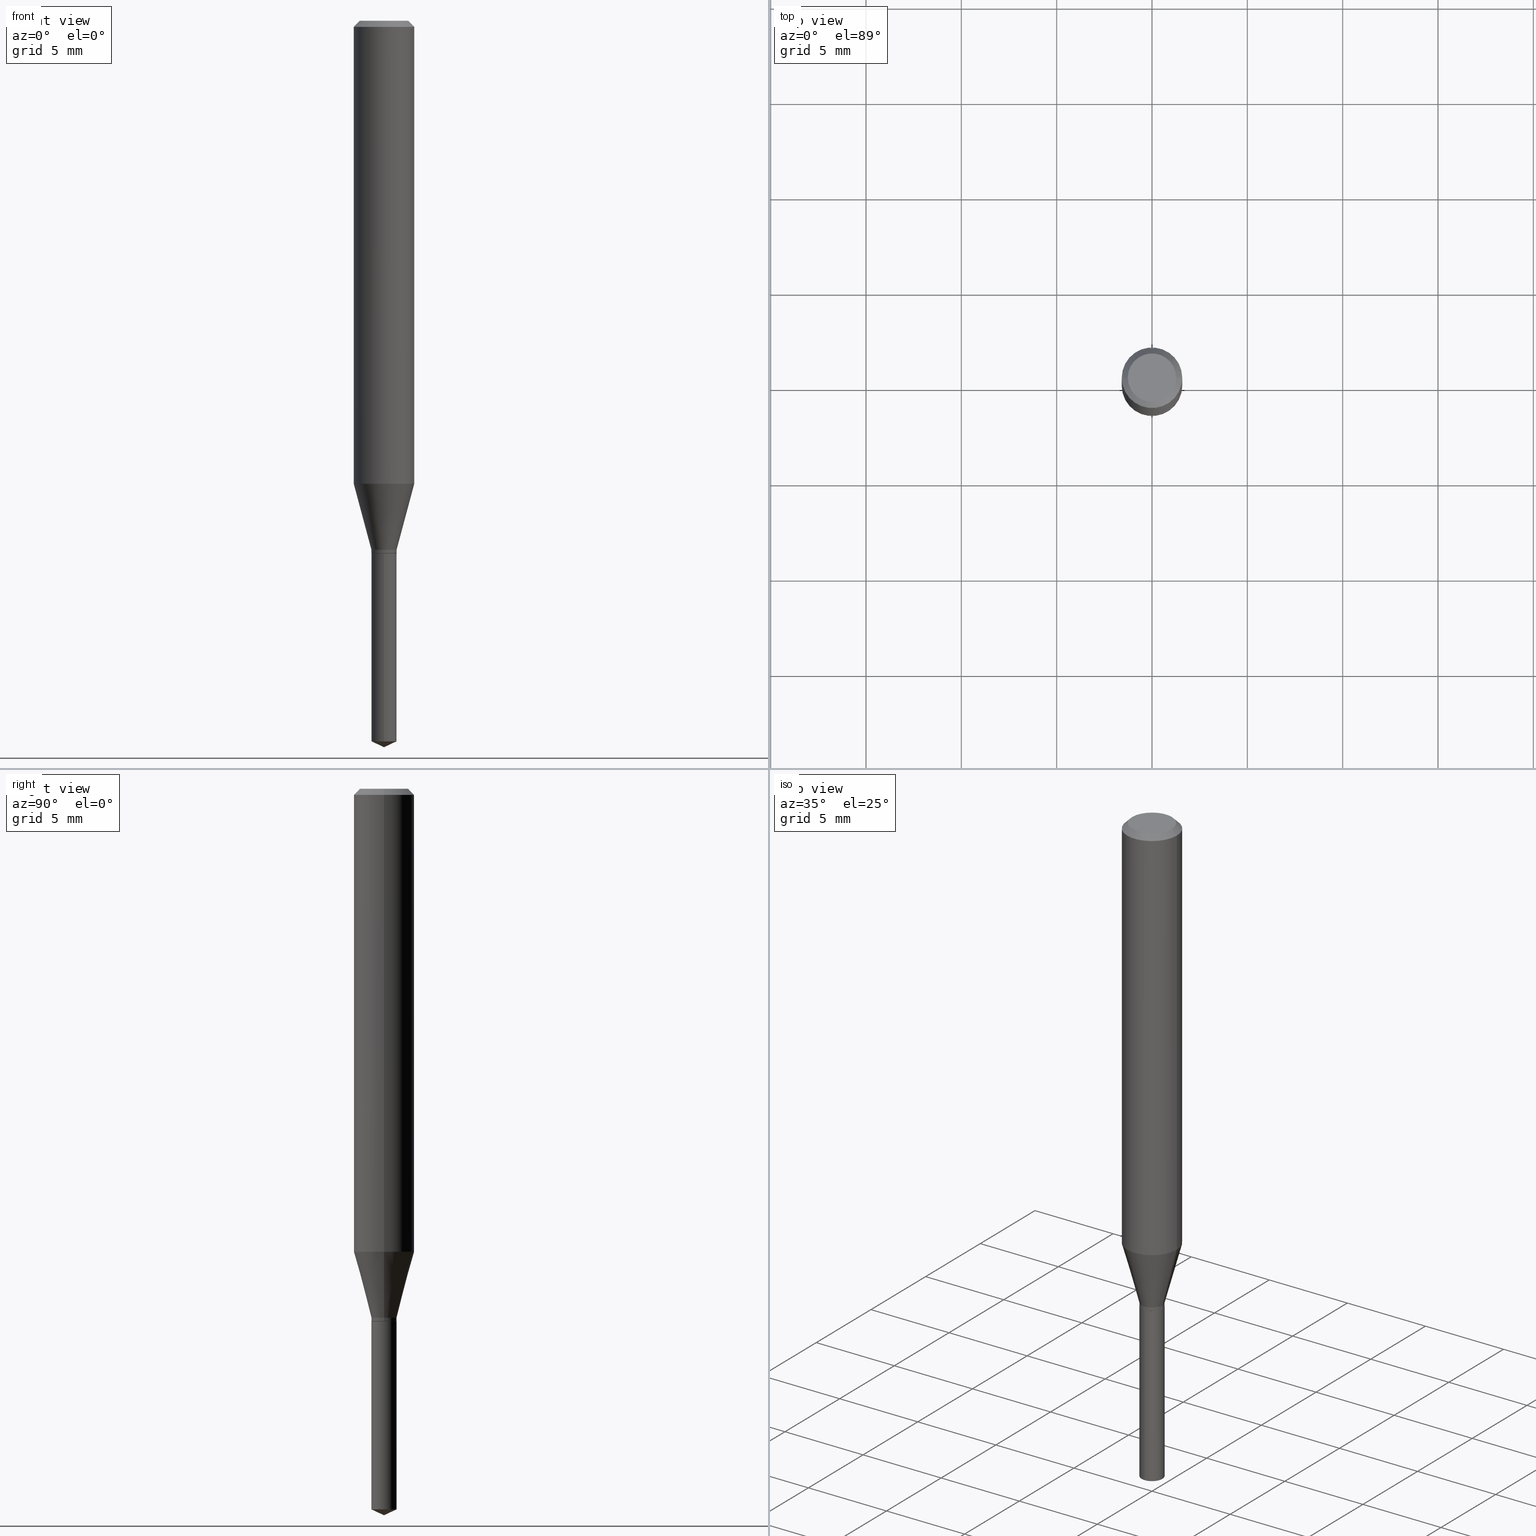
[diagram: canonical four-view strip — front | top / right | iso, engineering-drawing reading convention]
A machine part, canonical four-view strip (front | top / right | iso — engineering-drawing reading convention). The complete STEP part file that produces these views, byte-faithful:
ISO-10303-21;
HEADER;
FILE_DESCRIPTION (( 'STEP AP203' ),
    '1' );
FILE_NAME ('07333.STEP',
    '2024-04-23T20:31:27',
    ( '' ),
    ( '' ),
    'SwSTEP 2.0',
    'SolidWorks 2023',
    '' );
FILE_SCHEMA (( 'CONFIG_CONTROL_DESIGN' ));
ENDSEC;

DATA;
#1 = MANIFOLD_SOLID_BREP ( 'Body-Move/Copy2[2]', #91 ) ;
#2 = MECHANICAL_CONTEXT ( 'NONE', #404, 'mechanical' ) ;
#3 = MANIFOLD_SOLID_BREP ( 'Body-Move/Copy2[1]', #80 ) ;
#4 = AXIS2_PLACEMENT_3D ( 'NONE', #116, #315, #349 ) ;
#5 = CIRCLE ( 'NONE', #464, 0.06250000000000012490 ) ;
#6 = ORIENTED_EDGE ( 'NONE', *, *, #234, .F. ) ;
#7 = LINE ( 'NONE', #319, #204 ) ;
#8 = CONICAL_SURFACE ( 'NONE', #121, 0.06250000000000000000, 0.7853981633974449483 ) ;
#9 = AXIS2_PLACEMENT_3D ( 'NONE', #147, #304, #332 ) ;
#10 = DIRECTION ( 'NONE',  ( 2.445468806185136597E-29, -3.491481338843145583E-15, -1.000000000000000000 ) ) ;
#11 =( LENGTH_UNIT ( ) NAMED_UNIT ( * ) SI_UNIT ( $, .METRE. ) );
#12 = CARTESIAN_POINT ( 'NONE',  ( 1.847411112976625000E-16, 0.02599999999999615813, -1.100000000000000089 ) ) ;
#13 = FACE_OUTER_BOUND ( 'NONE', #293, .T. ) ;
#14 = FACE_OUTER_BOUND ( 'NONE', #59, .T. ) ;
#15 = EDGE_CURVE ( 'NONE', #222, #401, #244, .T. ) ;
#16 = VECTOR ( 'NONE', #37, 39.37007874015747433 ) ;
#17 = DIRECTION ( 'NONE',  ( -1.000000000000000000, 6.982962677686265922E-15, -4.876176775795935793E-29 ) ) ;
#18 = DIRECTION ( 'NONE',  ( 1.000000000000000000, -6.982962677686266711E-15, 0.000000000000000000 ) ) ;
#19 = ORIENTED_EDGE ( 'NONE', *, *, #307, .T. ) ;
#20 = LINE ( 'NONE', #199, #190 ) ;
#21 = VERTEX_POINT ( 'NONE', #466 ) ;
#22 = EDGE_LOOP ( 'NONE', ( #179, #247, #357, #406 ) ) ;
#23 = EDGE_CURVE ( 'NONE', #92, #89, #182, .T. ) ;
#24 = CARTESIAN_POINT ( 'NONE',  ( 2.690015686803650369E-29, -3.840629472727460101E-15, -1.100000000000000089 ) ) ;
#25 = CIRCLE ( 'NONE', #424, 0.02599999999999999534 ) ;
#26 = ORIENTED_EDGE ( 'NONE', *, *, #15, .T. ) ;
#27 = DIRECTION ( 'NONE',  ( 1.000000000000000000, -6.982962677686258822E-15, 0.000000000000000000 ) ) ;
#28 = ORIENTED_EDGE ( 'NONE', *, *, #165, .F. ) ;
#29 = COORDINATED_UNIVERSAL_TIME_OFFSET ( 5, 0, .BEHIND. ) ;
#30 = EDGE_LOOP ( 'NONE', ( #130, #370, #260, #66 ) ) ;
#31 = CARTESIAN_POINT ( 'NONE',  ( 2.670941030115406477E-29, -3.813395918284483857E-15, -1.092200000000000060 ) ) ;
#32 = EDGE_CURVE ( 'NONE', #368, #105, #78, .T. ) ;
#33 = DATE_AND_TIME ( #372, #246 ) ;
#34 = CARTESIAN_POINT ( 'NONE',  ( 0.000000000000000000, 0.000000000000000000, 0.000000000000000000 ) ) ;
#35 = CC_DESIGN_DATE_AND_TIME_ASSIGNMENT ( #136, #225, ( #353 ) ) ;
#36 = CALENDAR_DATE ( 2024, 23, 4 ) ;
#37 = DIRECTION ( 'NONE',  ( 0.2588190451025213501, 1.565188264969621968E-15, 0.9659258262890682012 ) ) ;
#38 = EDGE_CURVE ( 'NONE', #166, #331, #316, .T. ) ;
#39 = LOCAL_TIME ( 16, 31, 27.00000000000000000, #303 ) ;
#40 = ORIENTED_EDGE ( 'NONE', *, *, #238, .F. ) ;
#41 = ADVANCED_FACE ( 'NONE', ( #161 ), #8, .T. ) ;
#42 = DIRECTION ( 'NONE',  ( -6.982962677686266711E-15, -1.000000000000000000, 0.000000000000000000 ) ) ;
#43 = AXIS2_PLACEMENT_3D ( 'NONE', #360, #169, #324 ) ;
#44 = CARTESIAN_POINT ( 'NONE',  ( 3.056836007731443167E-31, -4.364351673553963533E-17, -0.01250000000000009090 ) ) ;
#45 = FACE_OUTER_BOUND ( 'NONE', #220, .T. ) ;
#46 = CARTESIAN_POINT ( 'NONE',  ( -0.06250000000000005551, 4.440892098500630106E-16, -3.074334431409318916E-30 ) ) ;
#47 = CARTESIAN_POINT ( 'NONE',  ( 3.056836007731443167E-31, -4.364351673553963533E-17, -0.01250000000000009090 ) ) ;
#48 = DIRECTION ( 'NONE',  ( -2.445468806185136597E-29, 3.491481338843145583E-15, 1.000000000000000000 ) ) ;
#49 = DIRECTION ( 'NONE',  ( -2.445468806185136877E-29, 3.491481338843145188E-15, 1.000000000000000000 ) ) ;
#50 = CIRCLE ( 'NONE', #305, 0.02549999999999999489 ) ;
#51 = FACE_OUTER_BOUND ( 'NONE', #251, .T. ) ;
#52 = ORIENTED_EDGE ( 'NONE', *, *, #23, .F. ) ;
#53 = CARTESIAN_POINT ( 'NONE',  ( 2.690015686803650369E-29, -3.840629472727460101E-15, -1.100000000000000089 ) ) ;
#54 = ORIENTED_EDGE ( 'NONE', *, *, #57, .F. ) ;
#55 = CARTESIAN_POINT ( 'NONE',  ( 2.690015686803650369E-29, -3.840629472727460101E-15, -1.100000000000000089 ) ) ;
#56 = ORIENTED_EDGE ( 'NONE', *, *, #38, .T. ) ;
#57 = EDGE_CURVE ( 'NONE', #191, #401, #83, .T. ) ;
#58 = APPROVAL_STATUS ( 'not_yet_approved' ) ;
#59 = EDGE_LOOP ( 'NONE', ( #201, #362, #170, #209 ) ) ;
#60 = DIRECTION ( 'NONE',  ( -6.982962677686266711E-15, -1.000000000000000000, 0.000000000000000000 ) ) ;
#61 = PERSON_AND_ORGANIZATION ( #361, #289 ) ;
#62 = ORIENTED_EDGE ( 'NONE', *, *, #127, .F. ) ;
#63 = DIRECTION ( 'NONE',  ( -2.445468806185136597E-29, 3.491481338843145583E-15, 1.000000000000000000 ) ) ;
#64 = EDGE_LOOP ( 'NONE', ( #483, #137, #390, #28 ) ) ;
#65 = COORDINATED_UNIVERSAL_TIME_OFFSET ( 5, 0, .BEHIND. ) ;
#66 = ORIENTED_EDGE ( 'NONE', *, *, #184, .F. ) ;
#67 = DIRECTION ( 'NONE',  ( -2.445468806185136597E-29, 3.491481338843145583E-15, 1.000000000000000000 ) ) ;
#68 = EDGE_CURVE ( 'NONE', #322, #105, #142, .T. ) ;
#69 = EDGE_LOOP ( 'NONE', ( #177, #337, #294, #140 ) ) ;
#70 = PERSON_AND_ORGANIZATION_ROLE ( 'design_owner' ) ;
#71 = DIRECTION ( 'NONE',  ( -0.7071067811865232589, 7.493145998870265808E-15, 0.7071067811865715536 ) ) ;
#72 = VECTOR ( 'NONE', #298, 39.37007874015748143 ) ;
#73 = CARTESIAN_POINT ( 'NONE',  ( -0.02549999999999999489, -3.659441075108634788E-15, -1.100000000000000089 ) ) ;
#74 = CARTESIAN_POINT ( 'NONE',  ( 0.06250000000000000000, -4.800786840909313294E-16, -0.01250000000000009090 ) ) ;
#75 = ADVANCED_FACE ( 'NONE', ( #313 ), #355, .T. ) ;
#76 = EDGE_CURVE ( 'NONE', #368, #21, #287, .T. ) ;
#77 = DIRECTION ( 'NONE',  ( -0.2588190451025213501, 5.211531920934551042E-15, 0.9659258262890682012 ) ) ;
#78 = LINE ( 'NONE', #232, #276 ) ;
#79 = DIRECTION ( 'NONE',  ( 1.000000000000000000, -6.982962677686267499E-15, 4.876176775795936353E-29 ) ) ;
#80 = CLOSED_SHELL ( 'NONE', ( #393, #94, #359, #334, #278 ) ) ;
#81 = CIRCLE ( 'NONE', #189, 0.04999999999999999584 ) ;
#82 = CC_DESIGN_APPROVAL ( #338, ( #145 ) ) ;
#83 = LINE ( 'NONE', #389, #194 ) ;
#84 = EDGE_CURVE ( 'NONE', #331, #439, #7, .T. ) ;
#85 = CARTESIAN_POINT ( 'NONE',  ( -0.02549999999999999489, -3.656791847934523587E-15, -1.100000000000000089 ) ) ;
#86 = DIRECTION ( 'NONE',  ( 1.000000000000000000, -6.982962677686258822E-15, 0.000000000000000000 ) ) ;
#87 = CARTESIAN_POINT ( 'NONE',  ( 3.056836007731443167E-31, -4.364351673553963533E-17, -0.01250000000000009090 ) ) ;
#88 = LINE ( 'NONE', #396, #195 ) ;
#89 = VERTEX_POINT ( 'NONE', #117 ) ;
#90 = CARTESIAN_POINT ( 'NONE',  ( 0.02599999999999999534, -3.994952947904326539E-15, -1.092200000000000060 ) ) ;
#91 = CLOSED_SHELL ( 'NONE', ( #158, #41, #120, #386, #421, #75, #377, #427, #342, #271, #489, #149 ) ) ;
#92 = VERTEX_POINT ( 'NONE', #469 ) ;
#93 = CC_DESIGN_APPROVAL ( #268, ( #353 ) ) ;
#94 = ADVANCED_FACE ( 'NONE', ( #418 ), #456, .T. ) ;
#95 = DIRECTION ( 'NONE',  ( 1.000000000000000000, 0.000000000000000000, 0.000000000000000000 ) ) ;
#96 = ORIENTED_EDGE ( 'NONE', *, *, #57, .T. ) ;
#97 = CARTESIAN_POINT ( 'NONE',  ( 0.06250000000000011102, -3.774222005756071563E-15, -0.9559801455237360024 ) ) ;
#98 = CARTESIAN_POINT ( 'NONE',  ( 2.690015686803650369E-29, -3.840629472727460101E-15, -1.100000000000000089 ) ) ;
#99 = ORIENTED_EDGE ( 'NONE', *, *, #214, .T. ) ;
#100 = PERSON_AND_ORGANIZATION ( #361, #289 ) ;
#101 = ORIENTED_EDGE ( 'NONE', *, *, #307, .F. ) ;
#102 = UNCERTAINTY_MEASURE_WITH_UNIT (LENGTH_MEASURE( 1.000000000000000082E-05 ), #425, 'distance_accuracy_value', 'NONE');
#103 = CARTESIAN_POINT ( 'NONE',  ( 0.02549999999999999489, -4.018695021008459776E-15, -1.100000000000000089 ) ) ;
#104 = DIRECTION ( 'NONE',  ( -2.445399690415121530E-29, 3.491580316559632610E-15, 1.000000000000000000 ) ) ;
#105 = VERTEX_POINT ( 'NONE', #12 ) ;
#106 = EDGE_CURVE ( 'NONE', #399, #89, #153, .T. ) ;
#107 = PERSON_AND_ORGANIZATION ( #361, #289 ) ;
#108 = AXIS2_PLACEMENT_3D ( 'NONE', #387, #351, #159 ) ;
#109 = ORIENTED_EDGE ( 'NONE', *, *, #299, .F. ) ;
#110 = ORIENTED_EDGE ( 'NONE', *, *, #23, .T. ) ;
#111 = PRODUCT_DEFINITION_SHAPE ( 'NONE', 'NONE',  #353 ) ;
#112 = DIRECTION ( 'NONE',  ( -2.445468806185136597E-29, 3.491481338843145583E-15, 1.000000000000000000 ) ) ;
#113 = AXIS2_PLACEMENT_3D ( 'NONE', #461, #286, #118 ) ;
#114 = CIRCLE ( 'NONE', #457, 0.02599999999999999534 ) ;
#115 = AXIS2_PLACEMENT_3D ( 'NONE', #171, #325, #95 ) ;
#116 = CARTESIAN_POINT ( 'NONE',  ( 2.688792952400557567E-29, -3.838883732058038598E-15, -1.099499999999999922 ) ) ;
#117 = CARTESIAN_POINT ( 'NONE',  ( 0.02599999999999999534, -4.020440761677881280E-15, -1.099499999999999922 ) ) ;
#118 = DIRECTION ( 'NONE',  ( -6.982962677686266711E-15, -1.000000000000000000, 5.253553833969737838E-15 ) ) ;
#119 = CARTESIAN_POINT ( 'NONE',  ( 3.638527539294547012E-29, -5.194929682693762230E-15, -1.487876000887969896 ) ) ;
#120 = ADVANCED_FACE ( 'NONE', ( #309 ), #458, .T. ) ;
#121 = AXIS2_PLACEMENT_3D ( 'NONE', #87, #10, #233 ) ;
#122 = VECTOR ( 'NONE', #131, 39.37007874015748143 ) ;
#123 = PLANE ( 'NONE',  #277 ) ;
#124 = DIRECTION ( 'NONE',  ( 1.000000000000000000, -6.982962677686258822E-15, 0.000000000000000000 ) ) ;
#125 = ORIENTED_EDGE ( 'NONE', *, *, #127, .T. ) ;
#126 = ORIENTED_EDGE ( 'NONE', *, *, #196, .F. ) ;
#127 = EDGE_CURVE ( 'NONE', #296, #439, #348, .T. ) ;
#128 = DIRECTION ( 'NONE',  ( -2.445468806185136597E-29, 3.491481338843145583E-15, 1.000000000000000000 ) ) ;
#129 = AXIS2_PLACEMENT_3D ( 'NONE', #311, #420, #79 ) ;
#130 = ORIENTED_EDGE ( 'NONE', *, *, #152, .F. ) ;
#131 = DIRECTION ( 'NONE',  ( -2.445468806185136877E-29, 3.491481338843145188E-15, 1.000000000000000000 ) ) ;
#132 = ADVANCED_BREP_SHAPE_REPRESENTATION ( '07333', ( #3, #1, #115 ), #257 ) ;
#133 = APPROVAL_STATUS ( 'not_yet_approved' ) ;
#134 = CARTESIAN_POINT ( 'NONE',  ( 0.000000000000000000, 0.000000000000000000, 0.000000000000000000 ) ) ;
#135 = ORIENTED_EDGE ( 'NONE', *, *, #234, .T. ) ;
#136 = DATE_AND_TIME ( #410, #228 ) ;
#137 = ORIENTED_EDGE ( 'NONE', *, *, #76, .T. ) ;
#138 = DESIGN_CONTEXT ( 'detailed design', #155, 'design' ) ;
#139 = CARTESIAN_POINT ( 'NONE',  ( 0.06250000000000005551, -4.364351673553921131E-16, 3.047610484872463023E-30 ) ) ;
#140 = ORIENTED_EDGE ( 'NONE', *, *, #188, .F. ) ;
#141 = PERSON_AND_ORGANIZATION ( #361, #289 ) ;
#142 = CIRCLE ( 'NONE', #431, 0.02599999999999999534 ) ;
#143 = CARTESIAN_POINT ( 'NONE',  ( 2.670941030115406477E-29, -3.813395918284483857E-15, -1.092200000000000060 ) ) ;
#144 = CARTESIAN_POINT ( 'NONE',  ( 2.690015686803650369E-29, -3.840629472727460101E-15, -1.100000000000000089 ) ) ;
#145 = PRODUCT_DEFINITION_FORMATION_WITH_SPECIFIED_SOURCE ( 'ANY', '', #343, .NOT_KNOWN. ) ;
#146 = SHAPE_DEFINITION_REPRESENTATION ( #111, #132 ) ;
#147 = CARTESIAN_POINT ( 'NONE',  ( 2.690015686803650369E-29, -3.840629472727460101E-15, -1.100000000000000089 ) ) ;
#148 = PERSON_AND_ORGANIZATION_ROLE ( 'creator' ) ;
#149 = ADVANCED_FACE ( 'NONE', ( #198 ), #350, .T. ) ;
#150 = CIRCLE ( 'NONE', #310, 0.04999999999999999584 ) ;
#151 = APPROVAL_PERSON_ORGANIZATION ( #448, #338, #438 ) ;
#152 = EDGE_CURVE ( 'NONE', #439, #401, #462, .T. ) ;
#153 = LINE ( 'NONE', #347, #154 ) ;
#154 = VECTOR ( 'NONE', #193, 39.37007874015748854 ) ;
#155 = APPLICATION_CONTEXT ( 'configuration controlled 3d designs of mechanical parts and assemblies' ) ;
#156 = DIRECTION ( 'NONE',  ( -2.445399690415121530E-29, 3.491580316559632610E-15, 1.000000000000000000 ) ) ;
#157 = CARTESIAN_POINT ( 'NONE',  ( 3.638527539294547012E-29, -5.194929682693762230E-15, -1.487876000887969896 ) ) ;
#158 = ADVANCED_FACE ( 'NONE', ( #14 ), #394, .T. ) ;
#159 = DIRECTION ( 'NONE',  ( 1.000000000000000000, -6.982962677686258033E-15, 0.000000000000000000 ) ) ;
#160 = CARTESIAN_POINT ( 'NONE',  ( -0.02599999999999999534, 1.847411112976260152E-16, -1.278923123466275386E-30 ) ) ;
#161 = FACE_OUTER_BOUND ( 'NONE', #435, .T. ) ;
#162 = AXIS2_PLACEMENT_3D ( 'NONE', #55, #104, #429 ) ;
#163 = DIRECTION ( 'NONE',  ( -6.328713451373352024E-15, -0.9063077870366461619, 0.4226182617407073239 ) ) ;
#164 = CARTESIAN_POINT ( 'NONE',  ( 2.670941030115406477E-29, -3.813395918284483857E-15, -1.092200000000000060 ) ) ;
#165 = EDGE_CURVE ( 'NONE', #105, #322, #488, .T. ) ;
#166 = VERTEX_POINT ( 'NONE', #90 ) ;
#167 = CARTESIAN_POINT ( 'NONE',  ( 0.04999999999999999584, -4.077247707424184705E-16, -1.592040838888913461E-18 ) ) ;
#168 = ORIENTED_EDGE ( 'NONE', *, *, #184, .T. ) ;
#169 = DIRECTION ( 'NONE',  ( 2.445399690415121250E-29, -3.491580316559632610E-15, -1.000000000000000000 ) ) ;
#170 = ORIENTED_EDGE ( 'NONE', *, *, #415, .F. ) ;
#171 = CARTESIAN_POINT ( 'NONE',  ( 0.000000000000000000, 0.000000000000000000, 0.000000000000000000 ) ) ;
#172 = ORIENTED_EDGE ( 'NONE', *, *, #299, .T. ) ;
#173 = VECTOR ( 'NONE', #71, 39.37007874015748854 ) ;
#174 = VERTEX_POINT ( 'NONE', #480 ) ;
#175 = FACE_OUTER_BOUND ( 'NONE', #22, .T. ) ;
#176 = CC_DESIGN_PERSON_AND_ORGANIZATION_ASSIGNMENT ( #477, #148, ( #353 ) ) ;
#177 = ORIENTED_EDGE ( 'NONE', *, *, #292, .T. ) ;
#178 =( NAMED_UNIT ( * ) SI_UNIT ( $, .STERADIAN. ) SOLID_ANGLE_UNIT ( ) );
#179 = ORIENTED_EDGE ( 'NONE', *, *, #415, .T. ) ;
#180 = CARTESIAN_POINT ( 'NONE',  ( 2.688792952400557567E-29, -3.838883732058038598E-15, -1.099499999999999922 ) ) ;
#181 = APPROVAL_DATE_TIME ( #33, #455 ) ;
#182 = CIRCLE ( 'NONE', #4, 0.02599999999999999534 ) ;
#183 = LOCAL_TIME ( 16, 31, 27.00000000000000000, #364 ) ;
#184 = EDGE_CURVE ( 'NONE', #401, #222, #447, .T. ) ;
#185 = SECURITY_CLASSIFICATION_LEVEL ( 'unclassified' ) ;
#186 = DIRECTION ( 'NONE',  ( 1.000000000000000000, -6.982962677686265922E-15, 4.875957971899673662E-29 ) ) ;
#187 = CARTESIAN_POINT ( 'NONE',  ( 2.337819625210623872E-29, -3.337786838400679105E-15, -0.9559801455237360024 ) ) ;
#188 = EDGE_CURVE ( 'NONE', #21, #322, #217, .T. ) ;
#189 = AXIS2_PLACEMENT_3D ( 'NONE', #314, #465, #422 ) ;
#190 = VECTOR ( 'NONE', #473, 39.37007874015748143 ) ;
#191 = VERTEX_POINT ( 'NONE', #207 ) ;
#192 = CARTESIAN_POINT ( 'NONE',  ( 2.690015686803650369E-29, -3.840629472727460101E-15, -1.100000000000000089 ) ) ;
#193 = DIRECTION ( 'NONE',  ( 0.7071067811865232589, -2.468850131082003836E-15, 0.7071067811865715536 ) ) ;
#194 = VECTOR ( 'NONE', #354, 39.37007874015748143 ) ;
#195 = VECTOR ( 'NONE', #49, 39.37007874015748143 ) ;
#196 = EDGE_CURVE ( 'NONE', #264, #191, #150, .T. ) ;
#197 = DIRECTION ( 'NONE',  ( 1.000000000000000000, -6.982962677686265922E-15, 4.876176775795935793E-29 ) ) ;
#198 = FACE_OUTER_BOUND ( 'NONE', #212, .T. ) ;
#199 = CARTESIAN_POINT ( 'NONE',  ( 0.06250000000000000000, -4.724246415962603826E-16, -0.01250000000000009090 ) ) ;
#200 = DIRECTION ( 'NONE',  ( -2.445468806185136877E-29, 3.491481338843145188E-15, 1.000000000000000000 ) ) ;
#201 = ORIENTED_EDGE ( 'NONE', *, *, #452, .T. ) ;
#202 = DIRECTION ( 'NONE',  ( 2.438088387897960049E-29, -3.491481338843145188E-15, -1.000000000000000000 ) ) ;
#203 = DIRECTION ( 'NONE',  ( -6.982962677686266711E-15, -1.000000000000000000, 5.253553833969737838E-15 ) ) ;
#204 = VECTOR ( 'NONE', #77, 39.37007874015747433 ) ;
#205 = EDGE_LOOP ( 'NONE', ( #433, #485, #408 ) ) ;
#206 = LINE ( 'NONE', #274, #301 ) ;
#207 = CARTESIAN_POINT ( 'NONE',  ( -0.04999999999999999584, 3.709698922520826725E-16, -1.592040838894077649E-18 ) ) ;
#208 = CC_DESIGN_PERSON_AND_ORGANIZATION_ASSIGNMENT ( #61, #443, ( #145 ) ) ;
#209 = ORIENTED_EDGE ( 'NONE', *, *, #106, .F. ) ;
#210 = ORIENTED_EDGE ( 'NONE', *, *, #214, .F. ) ;
#211 = APPROVAL_DATE_TIME ( #482, #268 ) ;
#212 = EDGE_LOOP ( 'NONE', ( #285, #99, #281, #52 ) ) ;
#213 = EDGE_LOOP ( 'NONE', ( #56, #419, #62, #6 ) ) ;
#214 = EDGE_CURVE ( 'NONE', #472, #399, #50, .T. ) ;
#215 = CONICAL_SURFACE ( 'NONE', #375, 0.06250000000000000000, 0.7853981633974449483 ) ;
#216 = CARTESIAN_POINT ( 'NONE',  ( -0.06250000000000011102, -2.893697628550616094E-15, -0.9559801455237360024 ) ) ;
#217 = LINE ( 'NONE', #367, #270 ) ;
#218 = SECURITY_CLASSIFICATION ( '', '', #185 ) ;
#219 = APPROVAL_ROLE ( '' ) ;
#220 = EDGE_LOOP ( 'NONE', ( #444, #476 ) ) ;
#221 = DIRECTION ( 'NONE',  ( 1.000000000000000000, -6.982962677686267499E-15, 4.876176775795936353E-29 ) ) ;
#222 = VERTEX_POINT ( 'NONE', #74 ) ;
#223 = APPROVAL_ROLE ( '' ) ;
#224 = DIRECTION ( 'NONE',  ( 1.000000000000000000, -6.982962677686258822E-15, 0.000000000000000000 ) ) ;
#225 = DATE_TIME_ROLE ( 'creation_date' ) ;
#226 = AXIS2_PLACEMENT_3D ( 'NONE', #164, #235, #124 ) ;
#227 = CIRCLE ( 'NONE', #9, 0.02549999999999999489 ) ;
#228 = LOCAL_TIME ( 16, 31, 27.00000000000000000, #29 ) ;
#229 = FACE_OUTER_BOUND ( 'NONE', #69, .T. ) ;
#230 = LINE ( 'NONE', #378, #16 ) ;
#231 = CC_DESIGN_DATE_AND_TIME_ASSIGNMENT ( #261, #486, ( #218 ) ) ;
#232 = CARTESIAN_POINT ( 'NONE',  ( 1.847411112976528858E-16, 0.02599999999999615466, -1.100000000000000089 ) ) ;
#233 = DIRECTION ( 'NONE',  ( -1.000000000000000000, 6.982962677686266711E-15, 0.000000000000000000 ) ) ;
#234 = EDGE_CURVE ( 'NONE', #166, #296, #230, .T. ) ;
#235 = DIRECTION ( 'NONE',  ( -2.445468806185136597E-29, 3.491481338843145583E-15, 1.000000000000000000 ) ) ;
#236 = AXIS2_PLACEMENT_3D ( 'NONE', #34, #112, #221 ) ;
#237 = DIRECTION ( 'NONE',  ( 1.000000000000000000, -6.982962677686264344E-15, 0.000000000000000000 ) ) ;
#238 = EDGE_CURVE ( 'NONE', #439, #296, #5, .T. ) ;
#239 = CARTESIAN_POINT ( 'NONE',  ( 3.668099535622682155E-29, -5.237370474839448718E-15, -1.500000000000000222 ) ) ;
#240 = DIRECTION ( 'NONE',  ( 1.000000000000000000, -6.982962677686267499E-15, 4.876176775795935793E-29 ) ) ;
#241 = ORIENTED_EDGE ( 'NONE', *, *, #152, .T. ) ;
#242 = CARTESIAN_POINT ( 'NONE',  ( -0.02599999999999999534, -3.641398713873635015E-15, -1.092200000000000060 ) ) ;
#243 = CC_DESIGN_PERSON_AND_ORGANIZATION_ASSIGNMENT ( #297, #402, ( #145 ) ) ;
#244 = CIRCLE ( 'NONE', #344, 0.06250000000000000000 ) ;
#245 = AXIS2_PLACEMENT_3D ( 'NONE', #143, #295, #27 ) ;
#246 = LOCAL_TIME ( 16, 31, 27.00000000000000000, #490 ) ;
#247 = ORIENTED_EDGE ( 'NONE', *, *, #263, .T. ) ;
#248 = APPLICATION_PROTOCOL_DEFINITION ( 'international standard', 'config_control_design', 1994, #404 ) ;
#249 = ORIENTED_EDGE ( 'NONE', *, *, #76, .F. ) ;
#250 = LINE ( 'NONE', #239, #467 ) ;
#251 = EDGE_LOOP ( 'NONE', ( #109, #329, #96, #168 ) ) ;
#252 = DATE_AND_TIME ( #374, #183 ) ;
#253 = ORIENTED_EDGE ( 'NONE', *, *, #481, .T. ) ;
#254 = DIRECTION ( 'NONE',  ( -2.445468806185136597E-29, 3.491481338843145583E-15, 1.000000000000000000 ) ) ;
#255 = CIRCLE ( 'NONE', #363, 0.02599999999999999534 ) ;
#256 = ORIENTED_EDGE ( 'NONE', *, *, #346, .F. ) ;
#257 =( GEOMETRIC_REPRESENTATION_CONTEXT ( 3 ) GLOBAL_UNCERTAINTY_ASSIGNED_CONTEXT ( ( #102 ) ) GLOBAL_UNIT_ASSIGNED_CONTEXT ( ( #425, #335, #178 ) ) REPRESENTATION_CONTEXT ( 'NONE', 'WORKASPACE' ) );
#258 = FACE_OUTER_BOUND ( 'NONE', #336, .T. ) ;
#259 = CC_DESIGN_APPROVAL ( #455, ( #218 ) ) ;
#260 = ORIENTED_EDGE ( 'NONE', *, *, #459, .T. ) ;
#261 = DATE_AND_TIME ( #369, #468 ) ;
#262 = DIRECTION ( 'NONE',  ( -6.982962677686268288E-15, -1.000000000000000000, 3.520397390770518557E-15 ) ) ;
#263 = EDGE_CURVE ( 'NONE', #92, #331, #471, .T. ) ;
#264 = VERTEX_POINT ( 'NONE', #167 ) ;
#265 = CARTESIAN_POINT ( 'NONE',  ( -9.260740279983036507E-28, 1.322265303911854087E-13, 37.87007874015748143 ) ) ;
#266 = DIRECTION ( 'NONE',  ( -2.445468806185136597E-29, 3.491481338843145583E-15, 1.000000000000000000 ) ) ;
#267 = AXIS2_PLACEMENT_3D ( 'NONE', #397, #392, #474 ) ;
#268 = APPROVAL ( #58, 'UNSPECIFIED' ) ;
#269 = CARTESIAN_POINT ( 'NONE',  ( 0.000000000000000000, 0.000000000000000000, 0.000000000000000000 ) ) ;
#270 = VECTOR ( 'NONE', #446, 39.37007874015748143 ) ;
#271 = ADVANCED_FACE ( 'NONE', ( #13 ), #123, .F. ) ;
#272 = DIRECTION ( 'NONE',  ( -2.445468806185136597E-29, 3.491481338843145583E-15, 1.000000000000000000 ) ) ;
#273 = DIRECTION ( 'NONE',  ( -6.982962677686268288E-15, -1.000000000000000000, 3.520397390770518557E-15 ) ) ;
#274 = CARTESIAN_POINT ( 'NONE',  ( 3.668252923656895710E-29, -5.237152723863177100E-15, -1.500000000000000222 ) ) ;
#275 = DIRECTION ( 'NONE',  ( -2.445399690415121810E-29, 3.491580316559632610E-15, 1.000000000000000000 ) ) ;
#276 = VECTOR ( 'NONE', #275, 39.37007874015748143 ) ;
#277 = AXIS2_PLACEMENT_3D ( 'NONE', #428, #202, #17 ) ;
#278 = ADVANCED_FACE ( 'NONE', ( #45 ), #312, .F. ) ;
#279 = LENGTH_MEASURE_WITH_UNIT ( LENGTH_MEASURE( 0.02539999999999999897 ), #11 );
#280 = DIRECTION ( 'NONE',  ( -2.445468806185136597E-29, 3.491481338843145583E-15, 1.000000000000000000 ) ) ;
#281 = ORIENTED_EDGE ( 'NONE', *, *, #106, .T. ) ;
#282 = CC_DESIGN_PERSON_AND_ORGANIZATION_ASSIGNMENT ( #339, #405, ( #218 ) ) ;
#283 = ORIENTED_EDGE ( 'NONE', *, *, #323, .T. ) ;
#284 = DIRECTION ( 'NONE',  ( 1.000000000000000000, -6.982962677686258033E-15, 0.000000000000000000 ) ) ;
#285 = ORIENTED_EDGE ( 'NONE', *, *, #380, .F. ) ;
#286 = DIRECTION ( 'NONE',  ( -2.445399690415121530E-29, 3.491580316559632610E-15, 1.000000000000000000 ) ) ;
#287 = CIRCLE ( 'NONE', #416, 0.02599999999999999534 ) ;
#288 = CONICAL_SURFACE ( 'NONE', #245, 0.02599999999999999534, 0.2617993877991500740 ) ;
#289 = ORGANIZATION ( 'UNSPECIFIED', 'UNSPECIFIED', '' ) ;
#290 = EDGE_LOOP ( 'NONE', ( #256, #283, #249 ) ) ;
#291 = DIRECTION ( 'NONE',  ( -2.445399690415121530E-29, 3.491580316559632610E-15, 1.000000000000000000 ) ) ;
#292 = EDGE_CURVE ( 'NONE', #21, #368, #25, .T. ) ;
#293 = EDGE_LOOP ( 'NONE', ( #365, #470 ) ) ;
#294 = ORIENTED_EDGE ( 'NONE', *, *, #68, .F. ) ;
#295 = DIRECTION ( 'NONE',  ( -2.445468806185136597E-29, 3.491481338843145583E-15, 1.000000000000000000 ) ) ;
#296 = VERTEX_POINT ( 'NONE', #97 ) ;
#297 = PERSON_AND_ORGANIZATION ( #361, #289 ) ;
#298 = DIRECTION ( 'NONE',  ( -2.445468806185136877E-29, 3.491481338843145188E-15, 1.000000000000000000 ) ) ;
#299 = EDGE_CURVE ( 'NONE', #264, #222, #20, .T. ) ;
#300 = APPROVAL_STATUS ( 'not_yet_approved' ) ;
#301 = VECTOR ( 'NONE', #358, 39.37007874015748854 ) ;
#302 = FACE_OUTER_BOUND ( 'NONE', #30, .T. ) ;
#303 = COORDINATED_UNIVERSAL_TIME_OFFSET ( 5, 0, .BEHIND. ) ;
#304 = DIRECTION ( 'NONE',  ( -2.445468806185136597E-29, 3.491481338843145583E-15, 1.000000000000000000 ) ) ;
#305 = AXIS2_PLACEMENT_3D ( 'NONE', #144, #266, #414 ) ;
#306 = EDGE_CURVE ( 'NONE', #191, #264, #81, .T. ) ;
#307 = EDGE_CURVE ( 'NONE', #331, #166, #255, .T. ) ;
#308 = AXIS2_PLACEMENT_3D ( 'NONE', #381, #156, #273 ) ;
#309 = FACE_OUTER_BOUND ( 'NONE', #371, .T. ) ;
#310 = AXIS2_PLACEMENT_3D ( 'NONE', #487, #453, #186 ) ;
#311 = CARTESIAN_POINT ( 'NONE',  ( 0.000000000000000000, 0.000000000000000000, 0.000000000000000000 ) ) ;
#312 = PLANE ( 'NONE',  #43 ) ;
#313 = FACE_OUTER_BOUND ( 'NONE', #437, .T. ) ;
#314 = CARTESIAN_POINT ( 'NONE',  ( 3.893286209682126177E-47, -5.558580879666067980E-33, -1.592040838891559689E-18 ) ) ;
#315 = DIRECTION ( 'NONE',  ( -2.445468806185136597E-29, 3.491481338843145583E-15, 1.000000000000000000 ) ) ;
#316 = CIRCLE ( 'NONE', #226, 0.02599999999999999534 ) ;
#317 = VECTOR ( 'NONE', #200, 39.37007874015748143 ) ;
#318 = DIRECTION ( 'NONE',  ( 2.445468806185136597E-29, -3.491481338843145583E-15, -1.000000000000000000 ) ) ;
#319 = CARTESIAN_POINT ( 'NONE',  ( -0.02599999999999999534, -3.628654806986858433E-15, -1.092200000000000060 ) ) ;
#320 = FACE_OUTER_BOUND ( 'NONE', #290, .T. ) ;
#321 = PLANE ( 'NONE',  #475 ) ;
#322 = VERTEX_POINT ( 'NONE', #426 ) ;
#323 = EDGE_CURVE ( 'NONE', #174, #21, #250, .T. ) ;
#324 = DIRECTION ( 'NONE',  ( 6.982962677686265922E-15, 1.000000000000000000, -3.491580316559632610E-15 ) ) ;
#325 = DIRECTION ( 'NONE',  ( 0.000000000000000000, 0.000000000000000000, 1.000000000000000000 ) ) ;
#326 = ORIENTED_EDGE ( 'NONE', *, *, #84, .F. ) ;
#327 = CYLINDRICAL_SURFACE ( 'NONE', #417, 0.02599999999999999534 ) ;
#328 = DIRECTION ( 'NONE',  ( -2.445468806185136597E-29, 3.491481338843145583E-15, 1.000000000000000000 ) ) ;
#329 = ORIENTED_EDGE ( 'NONE', *, *, #306, .F. ) ;
#330 = DIMENSIONAL_EXPONENTS ( 1.000000000000000000, 0.000000000000000000, 0.000000000000000000, 0.000000000000000000, 0.000000000000000000, 0.000000000000000000, 0.000000000000000000 ) ;
#331 = VERTEX_POINT ( 'NONE', #242 ) ;
#332 = DIRECTION ( 'NONE',  ( 1.000000000000000000, -6.982962677686258033E-15, 0.000000000000000000 ) ) ;
#333 = ORIENTED_EDGE ( 'NONE', *, *, #459, .F. ) ;
#334 = ADVANCED_FACE ( 'NONE', ( #400 ), #388, .T. ) ;
#335 =( NAMED_UNIT ( * ) PLANE_ANGLE_UNIT ( ) SI_UNIT ( $, .RADIAN. ) );
#336 = EDGE_LOOP ( 'NONE', ( #326, #19, #135, #40 ) ) ;
#337 = ORIENTED_EDGE ( 'NONE', *, *, #32, .T. ) ;
#338 = APPROVAL ( #133, 'UNSPECIFIED' ) ;
#339 = PERSON_AND_ORGANIZATION ( #361, #289 ) ;
#340 = AXIS2_PLACEMENT_3D ( 'NONE', #31, #254, #224 ) ;
#341 = DIRECTION ( 'NONE',  ( 1.000000000000000000, -6.982962677686258822E-15, 0.000000000000000000 ) ) ;
#342 = ADVANCED_FACE ( 'NONE', ( #51 ), #215, .T. ) ;
#343 = PRODUCT ( '07333', '07333', '', ( #2 ) ) ;
#344 = AXIS2_PLACEMENT_3D ( 'NONE', #44, #272, #18 ) ;
#345 = CONICAL_SURFACE ( 'NONE', #340, 0.02599999999999999534, 0.2617993877991500740 ) ;
#346 = EDGE_CURVE ( 'NONE', #174, #368, #206, .T. ) ;
#347 = CARTESIAN_POINT ( 'NONE',  ( 0.02549999999999999489, -4.018695021008459776E-15, -1.100000000000000089 ) ) ;
#348 = CIRCLE ( 'NONE', #411, 0.06250000000000012490 ) ;
#349 = DIRECTION ( 'NONE',  ( 1.000000000000000000, -6.982962677686258822E-15, 0.000000000000000000 ) ) ;
#350 = CONICAL_SURFACE ( 'NONE', #108, 0.02549999999999999489, 0.7853981633974141952 ) ;
#351 = DIRECTION ( 'NONE',  ( -2.445468806185136597E-29, 3.491481338843145583E-15, 1.000000000000000000 ) ) ;
#352 = DIRECTION ( 'NONE',  ( 1.000000000000000000, -6.982962677686264344E-15, 0.000000000000000000 ) ) ;
#353 = PRODUCT_DEFINITION ( 'UNKNOWN', '', #145, #138 ) ;
#354 = DIRECTION ( 'NONE',  ( -0.7071067811865451302, 2.468850131082231817E-15, -0.7071067811865499042 ) ) ;
#355 = CYLINDRICAL_SURFACE ( 'NONE', #463, 0.02599999999999999534 ) ;
#356 = FACE_OUTER_BOUND ( 'NONE', #450, .T. ) ;
#357 = ORIENTED_EDGE ( 'NONE', *, *, #38, .F. ) ;
#358 = DIRECTION ( 'NONE',  ( 6.439704144417007476E-15, 0.9063077870366490485, 0.4226182617407009956 ) ) ;
#359 = ADVANCED_FACE ( 'NONE', ( #320 ), #412, .T. ) ;
#360 = CARTESIAN_POINT ( 'NONE',  ( 2.690015686803650369E-29, -3.840629472727460101E-15, -1.100000000000000089 ) ) ;
#361 = PERSON ( 'UNSPECIFIED', 'UNSPECIFIED', 'UNSPECIFIED', ('UNSPECIFIED'), ('UNSPECIFIED'), ('UNSPECIFIED') ) ;
#362 = ORIENTED_EDGE ( 'NONE', *, *, #380, .T. ) ;
#363 = AXIS2_PLACEMENT_3D ( 'NONE', #436, #280, #86 ) ;
#364 = COORDINATED_UNIVERSAL_TIME_OFFSET ( 5, 0, .BEHIND. ) ;
#365 = ORIENTED_EDGE ( 'NONE', *, *, #306, .T. ) ;
#366 = CARTESIAN_POINT ( 'NONE',  ( 1.847411112976624754E-16, 0.02599999999999481198, -1.487876000887969896 ) ) ;
#367 = CARTESIAN_POINT ( 'NONE',  ( -1.815570296198159840E-16, -0.02600000000000383948, -1.099999999999999867 ) ) ;
#368 = VERTEX_POINT ( 'NONE', #366 ) ;
#369 = CALENDAR_DATE ( 2024, 23, 4 ) ;
#370 = ORIENTED_EDGE ( 'NONE', *, *, #238, .T. ) ;
#371 = EDGE_LOOP ( 'NONE', ( #125, #241, #478, #333 ) ) ;
#372 = CALENDAR_DATE ( 2024, 23, 4 ) ;
#373 = DIRECTION ( 'NONE',  ( 1.000000000000000000, -6.982962677686267499E-15, 4.876176775795935793E-29 ) ) ;
#374 = CALENDAR_DATE ( 2024, 23, 4 ) ;
#375 = AXIS2_PLACEMENT_3D ( 'NONE', #47, #318, #391 ) ;
#376 = CC_DESIGN_SECURITY_CLASSIFICATION ( #218, ( #145 ) ) ;
#377 = ADVANCED_FACE ( 'NONE', ( #258 ), #345, .T. ) ;
#378 = CARTESIAN_POINT ( 'NONE',  ( 0.02599999999999999534, -3.994952947904326539E-15, -1.092200000000000060 ) ) ;
#379 = AXIS2_PLACEMENT_3D ( 'NONE', #98, #328, #284 ) ;
#380 = EDGE_CURVE ( 'NONE', #472, #92, #413, .T. ) ;
#381 = CARTESIAN_POINT ( 'NONE',  ( -9.260740279983036507E-28, 1.322265303911854087E-13, 37.87007874015748143 ) ) ;
#382 = PRODUCT_RELATED_PRODUCT_CATEGORY ( 'detail', '', ( #343 ) ) ;
#383 = DIRECTION ( 'NONE',  ( -2.445399690415121530E-29, 3.491580316559632610E-15, 1.000000000000000000 ) ) ;
#384 = DIRECTION ( 'NONE',  ( -2.438088387897960049E-29, 3.491481338843145188E-15, 1.000000000000000000 ) ) ;
#385 = DIRECTION ( 'NONE',  ( -2.445468806185136597E-29, 3.491481338843145583E-15, 1.000000000000000000 ) ) ;
#386 = ADVANCED_FACE ( 'NONE', ( #403 ), #288, .T. ) ;
#387 = CARTESIAN_POINT ( 'NONE',  ( 2.690015686803650369E-29, -3.840629472727460101E-15, -1.100000000000000089 ) ) ;
#388 = CYLINDRICAL_SURFACE ( 'NONE', #113, 0.02599999999999999534 ) ;
#389 = CARTESIAN_POINT ( 'NONE',  ( -0.06250000000000000000, 3.927916506198520587E-16, -0.01250000000000009090 ) ) ;
#390 = ORIENTED_EDGE ( 'NONE', *, *, #188, .T. ) ;
#391 = DIRECTION ( 'NONE',  ( -1.000000000000000000, 6.982962677686266711E-15, 0.000000000000000000 ) ) ;
#392 = DIRECTION ( 'NONE',  ( -2.445468806185136597E-29, 3.491481338843145583E-15, 1.000000000000000000 ) ) ;
#393 = ADVANCED_FACE ( 'NONE', ( #229 ), #327, .T. ) ;
#394 = CONICAL_SURFACE ( 'NONE', #379, 0.02549999999999999489, 0.7853981633974141952 ) ;
#395 = APPROVAL_PERSON_ORGANIZATION ( #100, #268, #219 ) ;
#396 = CARTESIAN_POINT ( 'NONE',  ( 0.02599999999999999534, -1.815570296198429286E-16, 1.267805961706943054E-30 ) ) ;
#397 = CARTESIAN_POINT ( 'NONE',  ( 3.056836007731443167E-31, -4.364351673553963533E-17, -0.01250000000000009090 ) ) ;
#398 = APPLICATION_PROTOCOL_DEFINITION ( 'international standard', 'config_control_design', 1994, #155 ) ;
#399 = VERTEX_POINT ( 'NONE', #103 ) ;
#400 = FACE_OUTER_BOUND ( 'NONE', #64, .T. ) ;
#401 = VERTEX_POINT ( 'NONE', #479 ) ;
#402 = PERSON_AND_ORGANIZATION_ROLE ( 'creator' ) ;
#403 = FACE_OUTER_BOUND ( 'NONE', #213, .T. ) ;
#404 = APPLICATION_CONTEXT ( 'configuration controlled 3d designs of mechanical parts and assemblies' ) ;
#405 = PERSON_AND_ORGANIZATION_ROLE ( 'classification_officer' ) ;
#406 = ORIENTED_EDGE ( 'NONE', *, *, #481, .F. ) ;
#407 = DIRECTION ( 'NONE',  ( -6.982962677686266711E-15, -1.000000000000000000, 5.253553833969737838E-15 ) ) ;
#408 = ORIENTED_EDGE ( 'NONE', *, *, #292, .F. ) ;
#409 = CYLINDRICAL_SURFACE ( 'NONE', #432, 0.02599999999999999534 ) ;
#410 = CALENDAR_DATE ( 2024, 23, 4 ) ;
#411 = AXIS2_PLACEMENT_3D ( 'NONE', #423, #385, #237 ) ;
#412 = CONICAL_SURFACE ( 'NONE', #454, 84.42940631927278616, 1.134464013796308901 ) ;
#413 = LINE ( 'NONE', #73, #173 ) ;
#414 = DIRECTION ( 'NONE',  ( 1.000000000000000000, -6.982962677686258033E-15, 0.000000000000000000 ) ) ;
#415 = EDGE_CURVE ( 'NONE', #89, #92, #114, .T. ) ;
#416 = AXIS2_PLACEMENT_3D ( 'NONE', #119, #383, #42 ) ;
#417 = AXIS2_PLACEMENT_3D ( 'NONE', #24, #440, #407 ) ;
#418 = FACE_OUTER_BOUND ( 'NONE', #205, .T. ) ;
#419 = ORIENTED_EDGE ( 'NONE', *, *, #84, .T. ) ;
#420 = DIRECTION ( 'NONE',  ( -2.445468806185136597E-29, 3.491481338843145583E-15, 1.000000000000000000 ) ) ;
#421 = ADVANCED_FACE ( 'NONE', ( #175 ), #409, .T. ) ;
#422 = DIRECTION ( 'NONE',  ( 1.000000000000000000, -6.982962677686265922E-15, 4.875957971899673662E-29 ) ) ;
#423 = CARTESIAN_POINT ( 'NONE',  ( 2.337819625210623872E-29, -3.337786838400679105E-15, -0.9559801455237360024 ) ) ;
#424 = AXIS2_PLACEMENT_3D ( 'NONE', #157, #291, #60 ) ;
#425 =( CONVERSION_BASED_UNIT ( 'INCH', #279 ) LENGTH_UNIT ( ) NAMED_UNIT ( #330 ) );
#426 = CARTESIAN_POINT ( 'NONE',  ( -1.815570296198159840E-16, -0.02600000000000383948, -1.099999999999999867 ) ) ;
#427 = ADVANCED_FACE ( 'NONE', ( #302 ), #449, .T. ) ;
#428 = CARTESIAN_POINT ( 'NONE',  ( 1.946643104841063088E-47, -2.779290439833033990E-33, -7.960204194457798443E-19 ) ) ;
#429 = DIRECTION ( 'NONE',  ( -6.982962677686266711E-15, -1.000000000000000000, 5.253553833969737838E-15 ) ) ;
#430 = ORIENTED_EDGE ( 'NONE', *, *, #263, .F. ) ;
#431 = AXIS2_PLACEMENT_3D ( 'NONE', #192, #460, #203 ) ;
#432 = AXIS2_PLACEMENT_3D ( 'NONE', #134, #63, #373 ) ;
#433 = ORIENTED_EDGE ( 'NONE', *, *, #323, .F. ) ;
#434 = APPROVAL_PERSON_ORGANIZATION ( #141, #455, #223 ) ;
#435 = EDGE_LOOP ( 'NONE', ( #126, #172, #26, #54 ) ) ;
#436 = CARTESIAN_POINT ( 'NONE',  ( 2.670941030115406477E-29, -3.813395918284483857E-15, -1.092200000000000060 ) ) ;
#437 = EDGE_LOOP ( 'NONE', ( #430, #110, #253, #101 ) ) ;
#438 = APPROVAL_ROLE ( '' ) ;
#439 = VERTEX_POINT ( 'NONE', #216 ) ;
#440 = DIRECTION ( 'NONE',  ( -2.445399690415121530E-29, 3.491580316559632610E-15, 1.000000000000000000 ) ) ;
#441 = ORIENTED_EDGE ( 'NONE', *, *, #452, .F. ) ;
#442 = CC_DESIGN_PERSON_AND_ORGANIZATION_ASSIGNMENT ( #107, #70, ( #343 ) ) ;
#443 = PERSON_AND_ORGANIZATION_ROLE ( 'design_supplier' ) ;
#444 = ORIENTED_EDGE ( 'NONE', *, *, #68, .T. ) ;
#445 = DIRECTION ( 'NONE',  ( -2.445399690415121530E-29, 3.491580316559632610E-15, 1.000000000000000000 ) ) ;
#446 = DIRECTION ( 'NONE',  ( -2.445399690415121810E-29, 3.491580316559632610E-15, 1.000000000000000000 ) ) ;
#447 = CIRCLE ( 'NONE', #267, 0.06250000000000000000 ) ;
#448 = PERSON_AND_ORGANIZATION ( #361, #289 ) ;
#449 = CYLINDRICAL_SURFACE ( 'NONE', #236, 0.06250000000000005551 ) ;
#450 = EDGE_LOOP ( 'NONE', ( #441, #210 ) ) ;
#451 = APPROVAL_DATE_TIME ( #252, #338 ) ;
#452 = EDGE_CURVE ( 'NONE', #399, #472, #227, .T. ) ;
#453 = DIRECTION ( 'NONE',  ( -2.445468806185136597E-29, 3.491481338843145583E-15, 1.000000000000000000 ) ) ;
#454 = AXIS2_PLACEMENT_3D ( 'NONE', #265, #445, #262 ) ;
#455 = APPROVAL ( #300, 'UNSPECIFIED' ) ;
#456 = CONICAL_SURFACE ( 'NONE', #308, 84.42940631927278616, 1.134464013796308901 ) ;
#457 = AXIS2_PLACEMENT_3D ( 'NONE', #180, #67, #341 ) ;
#458 = CYLINDRICAL_SURFACE ( 'NONE', #129, 0.06250000000000005551 ) ;
#459 = EDGE_CURVE ( 'NONE', #296, #222, #484, .T. ) ;
#460 = DIRECTION ( 'NONE',  ( -2.445399690415121530E-29, 3.491580316559632610E-15, 1.000000000000000000 ) ) ;
#461 = CARTESIAN_POINT ( 'NONE',  ( 2.690015686803650369E-29, -3.840629472727460101E-15, -1.100000000000000089 ) ) ;
#462 = LINE ( 'NONE', #46, #317 ) ;
#463 = AXIS2_PLACEMENT_3D ( 'NONE', #269, #48, #240 ) ;
#464 = AXIS2_PLACEMENT_3D ( 'NONE', #187, #128, #352 ) ;
#465 = DIRECTION ( 'NONE',  ( -2.445468806185136597E-29, 3.491481338843145583E-15, 1.000000000000000000 ) ) ;
#466 = CARTESIAN_POINT ( 'NONE',  ( -1.815570296198065177E-16, -0.02600000000000519951, -1.487876000887969896 ) ) ;
#467 = VECTOR ( 'NONE', #163, 39.37007874015748854 ) ;
#468 = LOCAL_TIME ( 16, 31, 27.00000000000000000, #65 ) ;
#469 = CARTESIAN_POINT ( 'NONE',  ( -0.02599999999999999534, -3.641398713873635015E-15, -1.099499999999999922 ) ) ;
#470 = ORIENTED_EDGE ( 'NONE', *, *, #196, .T. ) ;
#471 = LINE ( 'NONE', #160, #122 ) ;
#472 = VERTEX_POINT ( 'NONE', #85 ) ;
#473 = DIRECTION ( 'NONE',  ( 0.7071067811865451302, -7.319954787623248157E-15, -0.7071067811865499042 ) ) ;
#474 = DIRECTION ( 'NONE',  ( 1.000000000000000000, -6.982962677686266711E-15, 0.000000000000000000 ) ) ;
#475 = AXIS2_PLACEMENT_3D ( 'NONE', #53, #384, #197 ) ;
#476 = ORIENTED_EDGE ( 'NONE', *, *, #165, .T. ) ;
#477 = PERSON_AND_ORGANIZATION ( #361, #289 ) ;
#478 = ORIENTED_EDGE ( 'NONE', *, *, #15, .F. ) ;
#479 = CARTESIAN_POINT ( 'NONE',  ( -0.06250000000000000000, -1.246625967718045534E-15, -0.01250000000000009090 ) ) ;
#480 = CARTESIAN_POINT ( 'NONE',  ( 3.668099535622682715E-29, -5.237370474839449507E-15, -1.500000000000000222 ) ) ;
#481 = EDGE_CURVE ( 'NONE', #89, #166, #88, .T. ) ;
#482 = DATE_AND_TIME ( #36, #39 ) ;
#483 = ORIENTED_EDGE ( 'NONE', *, *, #32, .F. ) ;
#484 = LINE ( 'NONE', #139, #72 ) ;
#485 = ORIENTED_EDGE ( 'NONE', *, *, #346, .T. ) ;
#486 = DATE_TIME_ROLE ( 'classification_date' ) ;
#487 = CARTESIAN_POINT ( 'NONE',  ( 3.893286209682126177E-47, -5.558580879666067980E-33, -1.592040838891559689E-18 ) ) ;
#488 = CIRCLE ( 'NONE', #162, 0.02599999999999999534 ) ;
#489 = ADVANCED_FACE ( 'NONE', ( #356 ), #321, .F. ) ;
#490 = COORDINATED_UNIVERSAL_TIME_OFFSET ( 5, 0, .BEHIND. ) ;
ENDSEC;
END-ISO-10303-21;
